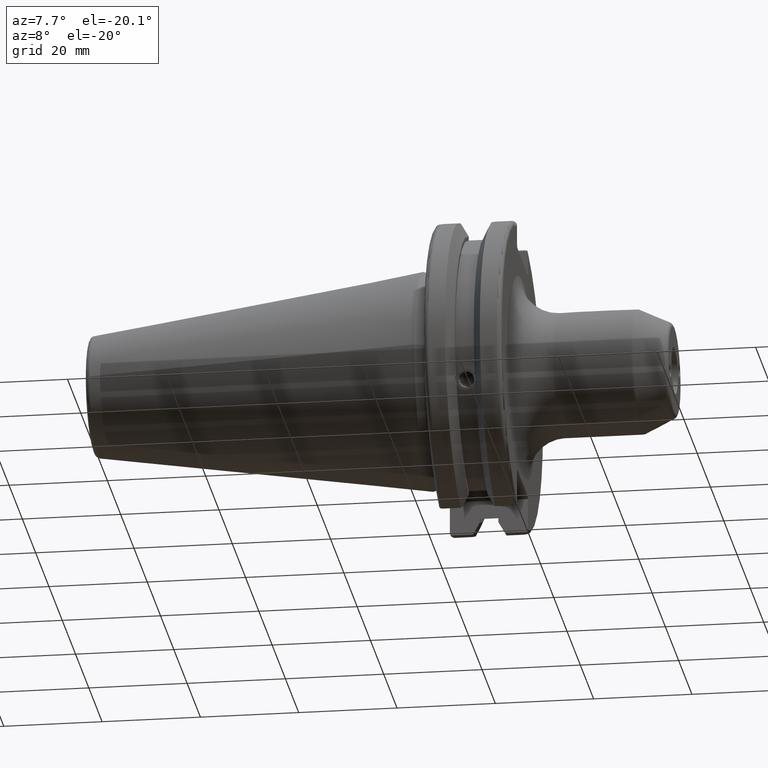
[diagram: clean part render]
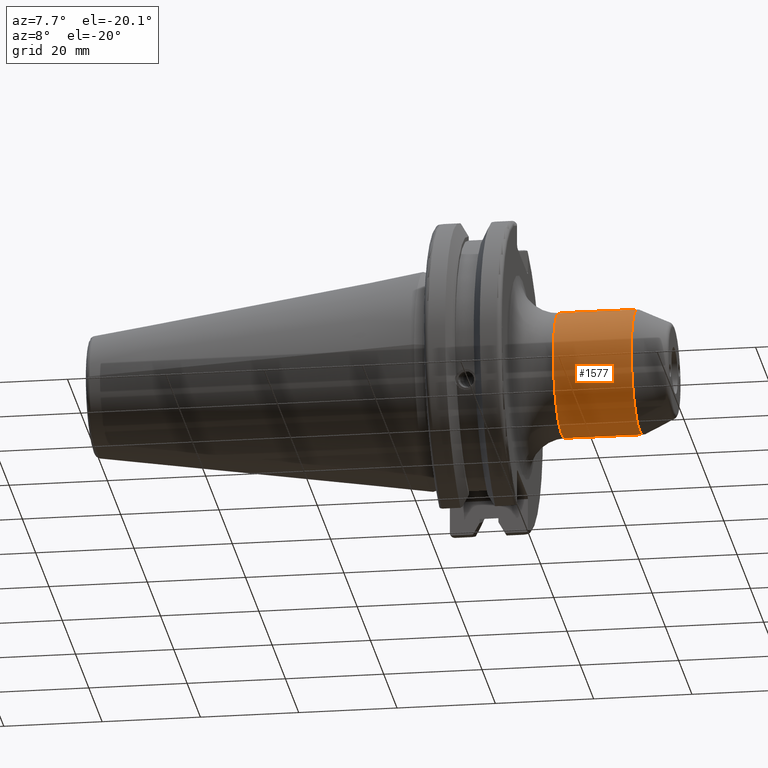
[diagram: same view with one face highlighted and labeled with its STEP entity id]
A machine part, auxiliary view. The second image highlights one B-rep face of the part: STEP entity #1577.
In plain terms, the highlighted cylindrical surface (bore or boss wall) has radius 12.7 mm, axis along (-1, 0, 0).
Its self-contained STEP definition (entity closure, byte-faithful):
#58=FACE_BOUND('',#287,.T.);
#121=CIRCLE('',#1704,12.7);
#123=CIRCLE('',#1707,12.7);
#193=FACE_OUTER_BOUND('',#286,.T.);
#286=EDGE_LOOP('',(#1109,#1110,#1111,#1112));
#287=EDGE_LOOP('',(#1113,#1114));
#384=B_SPLINE_CURVE_WITH_KNOTS('',3,(#2487,#2488,#2489,#2490,#2491,#2492,
#2493,#2494,#2495,#2496,#2497,#2498),.UNSPECIFIED.,.F.,.F.,(4,2,2,2,2,4),
(0.,0.20433756102829,0.408675122056581,0.623177363207417,0.730428483782836,
0.837679604358254),.UNSPECIFIED.);
#385=B_SPLINE_CURVE_WITH_KNOTS('',3,(#2499,#2500,#2501,#2502,#2503,#2504,
#2505,#2506,#2507,#2508,#2509,#2510,#2511,#2512,#2513,#2514,#2515,#2516,
#2517,#2518,#2519,#2520,#2521,#2522,#2523,#2524,#2525,#2526,#2527,#2528,
#2529,#2530),.UNSPECIFIED.,.F.,.F.,(4,2,2,2,2,2,2,2,2,2,2,2,2,2,2,4),(0.837679604358254,
0.944930724933673,1.05218184550909,1.26668408665993,1.47102164768822,1.67535920871651,
1.8796967697448,2.08403433077309,2.29853657192393,2.40578769249935,2.51303881307476,
2.62028993365018,2.7275410542256,2.94204329537644,3.14638085640473,3.35071841743302),
 .UNSPECIFIED.);
#427=LINE('',#2660,#524);
#524=VECTOR('',#1932,12.7);
#643=VERTEX_POINT('',#2484);
#644=VERTEX_POINT('',#2486);
#659=VERTEX_POINT('',#2654);
#660=VERTEX_POINT('',#2658);
#809=EDGE_CURVE('',#644,#643,#384,.T.);
#810=EDGE_CURVE('',#643,#644,#385,.T.);
#833=EDGE_CURVE('',#659,#659,#121,.T.);
#835=EDGE_CURVE('',#660,#660,#123,.T.);
#836=EDGE_CURVE('',#660,#659,#427,.T.);
#1109=ORIENTED_EDGE('',*,*,#835,.F.);
#1110=ORIENTED_EDGE('',*,*,#836,.T.);
#1111=ORIENTED_EDGE('',*,*,#833,.F.);
#1112=ORIENTED_EDGE('',*,*,#836,.F.);
#1113=ORIENTED_EDGE('',*,*,#809,.T.);
#1114=ORIENTED_EDGE('',*,*,#810,.T.);
#1540=CYLINDRICAL_SURFACE('',#1706,12.7);
#1577=ADVANCED_FACE('',(#193,#58),#1540,.T.);
#1704=AXIS2_PLACEMENT_3D('',#2655,#1924,#1925);
#1706=AXIS2_PLACEMENT_3D('',#2657,#1928,#1929);
#1707=AXIS2_PLACEMENT_3D('',#2659,#1930,#1931);
#1924=DIRECTION('center_axis',(1.,0.,0.));
#1925=DIRECTION('ref_axis',(0.,1.22464679914735E-16,-1.));
#1928=DIRECTION('center_axis',(-1.,0.,0.));
#1929=DIRECTION('ref_axis',(0.,0.,1.));
#1930=DIRECTION('center_axis',(-1.,0.,0.));
#1931=DIRECTION('ref_axis',(0.,1.22464679914735E-16,-1.));
#1932=DIRECTION('',(1.,0.,0.));
#2484=CARTESIAN_POINT('',(28.,-7.34788079488411E-16,12.7));
#2486=CARTESIAN_POINT('',(34.,-4.98201656263356,11.6820165626336));
#2487=CARTESIAN_POINT('Ctrl Pts',(34.,-4.98201656263356,11.6820165626336));
#2488=CARTESIAN_POINT('Ctrl Pts',(33.3188747965724,-4.98201656263356,11.6820165626336));
#2489=CARTESIAN_POINT('Ctrl Pts',(32.5852684910394,-4.87838053389086,11.7280211019252));
#2490=CARTESIAN_POINT('Ctrl Pts',(31.2013289056603,-4.44174710809859,11.9002505389952));
#2491=CARTESIAN_POINT('Ctrl Pts',(30.5506585442883,-4.10891967166657,12.0241899303008));
#2492=CARTESIAN_POINT('Ctrl Pts',(29.4476613194564,-3.29033462884459,12.2741941160609));
#2493=CARTESIAN_POINT('Ctrl Pts',(28.9231991595557,-2.73354198741695,12.419473784902));
#2494=CARTESIAN_POINT('Ctrl Pts',(28.3797749972188,-1.76833122617744,12.5805168064987));
#2495=CARTESIAN_POINT('Ctrl Pts',(28.237697882727,-1.42514310810013,12.6247478179875));
#2496=CARTESIAN_POINT('Ctrl Pts',(28.0477676929513,-0.719744151934752,12.6845283202536));
#2497=CARTESIAN_POINT('Ctrl Pts',(28.,-0.357503735251395,12.7));
#2498=CARTESIAN_POINT('Ctrl Pts',(28.,-2.08166817117217E-16,12.7));
#2499=CARTESIAN_POINT('Ctrl Pts',(28.,-1.11022302462516E-15,12.7));
#2500=CARTESIAN_POINT('Ctrl Pts',(28.,0.357503735251394,12.7));
#2501=CARTESIAN_POINT('Ctrl Pts',(28.0477676929513,0.71974415193475,12.6845283202536));
#2502=CARTESIAN_POINT('Ctrl Pts',(28.237697882727,1.42514310810013,12.6247478179875));
#2503=CARTESIAN_POINT('Ctrl Pts',(28.3797749972188,1.76833122617744,12.5805168064987));
#2504=CARTESIAN_POINT('Ctrl Pts',(28.9231991595557,2.73354198741695,12.419473784902));
#2505=CARTESIAN_POINT('Ctrl Pts',(29.4476613194564,3.29033462884459,12.2741941160609));
#2506=CARTESIAN_POINT('Ctrl Pts',(30.5506585442883,4.10891967166657,12.0241899303008));
#2507=CARTESIAN_POINT('Ctrl Pts',(31.2013289056603,4.44174710809858,11.9002505389952));
#2508=CARTESIAN_POINT('Ctrl Pts',(32.5852684910394,4.87838053389086,11.7280211019252));
#2509=CARTESIAN_POINT('Ctrl Pts',(33.3188747965724,4.98201656263356,11.6820165626336));
#2510=CARTESIAN_POINT('Ctrl Pts',(34.6811252034276,4.98201656263356,11.6820165626336));
#2511=CARTESIAN_POINT('Ctrl Pts',(35.4147315089606,4.87838053389086,11.7280211019252));
#2512=CARTESIAN_POINT('Ctrl Pts',(36.7986710943397,4.44174710809859,11.9002505389952));
#2513=CARTESIAN_POINT('Ctrl Pts',(37.4493414557118,4.10891967166657,12.0241899303008));
#2514=CARTESIAN_POINT('Ctrl Pts',(38.5523386805436,3.29033462884459,12.2741941160609));
#2515=CARTESIAN_POINT('Ctrl Pts',(39.0768008404443,2.73354198741695,12.419473784902));
#2516=CARTESIAN_POINT('Ctrl Pts',(39.6202250027812,1.76833122617744,12.5805168064987));
#2517=CARTESIAN_POINT('Ctrl Pts',(39.762302117273,1.42514310810013,12.6247478179875));
#2518=CARTESIAN_POINT('Ctrl Pts',(39.9522323070487,0.719744151934753,12.6845283202536));
#2519=CARTESIAN_POINT('Ctrl Pts',(40.,0.357503735251397,12.7));
#2520=CARTESIAN_POINT('Ctrl Pts',(40.,-0.357503735251394,12.7));
#2521=CARTESIAN_POINT('Ctrl Pts',(39.9522323070487,-0.719744151934751,12.6845283202536));
#2522=CARTESIAN_POINT('Ctrl Pts',(39.762302117273,-1.42514310810013,12.6247478179875));
#2523=CARTESIAN_POINT('Ctrl Pts',(39.6202250027812,-1.76833122617744,12.5805168064987));
#2524=CARTESIAN_POINT('Ctrl Pts',(39.0768008404443,-2.73354198741695,12.419473784902));
#2525=CARTESIAN_POINT('Ctrl Pts',(38.5523386805436,-3.29033462884459,12.2741941160609));
#2526=CARTESIAN_POINT('Ctrl Pts',(37.4493414557118,-4.10891967166657,12.0241899303008));
#2527=CARTESIAN_POINT('Ctrl Pts',(36.7986710943397,-4.44174710809859,11.9002505389952));
#2528=CARTESIAN_POINT('Ctrl Pts',(35.4147315089606,-4.87838053389086,11.7280211019252));
#2529=CARTESIAN_POINT('Ctrl Pts',(34.6811252034276,-4.98201656263356,11.6820165626336));
#2530=CARTESIAN_POINT('Ctrl Pts',(34.,-4.98201656263356,11.6820165626336));
#2654=CARTESIAN_POINT('',(42.9158831917265,-1.55530143491714E-15,-12.7));
#2655=CARTESIAN_POINT('Origin',(42.9158831917265,0.,0.));
#2657=CARTESIAN_POINT('Origin',(31.0937889271847,0.,0.));
#2658=CARTESIAN_POINT('',(27.05,-1.55530143491714E-15,-12.7));
#2659=CARTESIAN_POINT('Origin',(27.05,0.,0.));
#2660=CARTESIAN_POINT('',(31.0937889271847,-1.55530143491714E-15,-12.7));